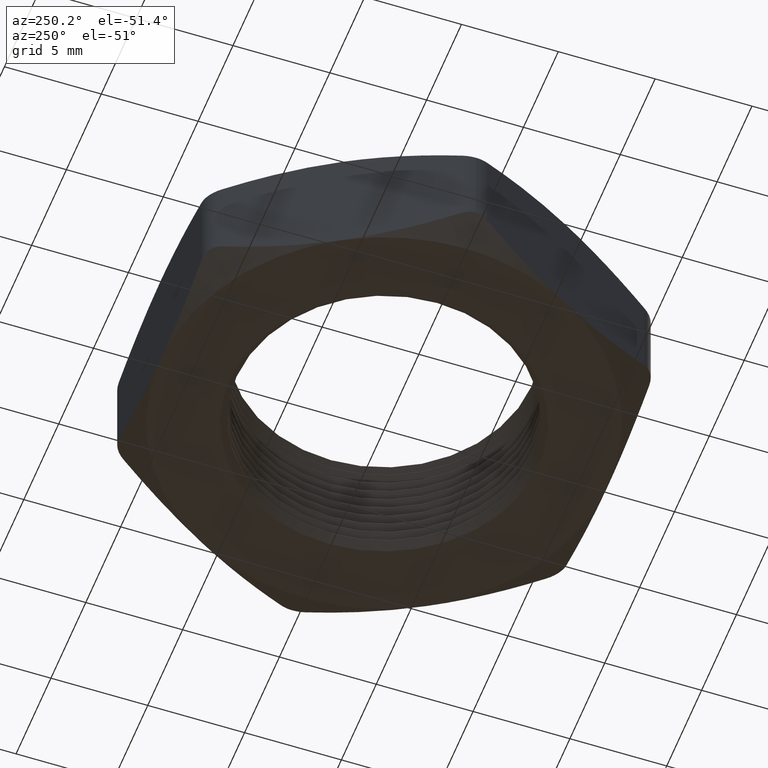
[diagram: clean part render]
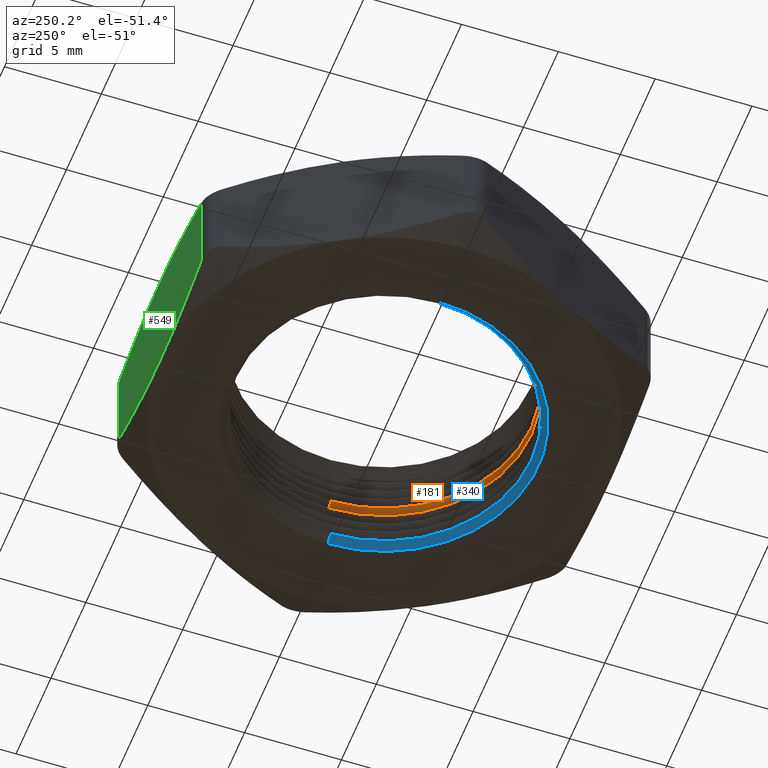
[diagram: same view with three faces highlighted in distinct colors, each labeled with its STEP entity id]
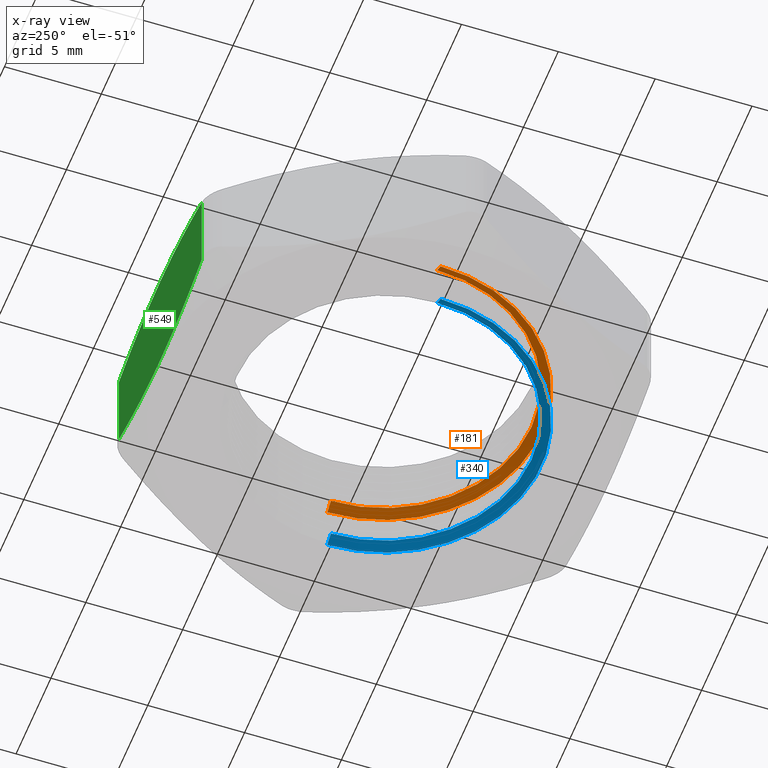
[diagram: x-ray of the same camera — body ghosted, the three highlighted faces saturated]
A machine part, auxiliary view with three faces highlighted in distinct colors.
The next image is the same camera in x-ray (body ghosted, the three faces saturated) — at least one of them is partly hidden behind the body in this view.
Their STEP definitions:

[orange] entity #181 — the highlighted conical surface has half-angle 60 deg.
#157 = VERTEX_POINT ( 'NONE', #1083 ) ;
#158 = EDGE_LOOP ( 'NONE', ( #161, #193, #300, #183 ) ) ;
#161 = ORIENTED_EDGE ( 'NONE', *, *, #192, .T. ) ;
#162 = VERTEX_POINT ( 'NONE', #1078 ) ;
#179 = EDGE_CURVE ( 'NONE', #182, #157, #1054, .T. ) ;
#181 = ADVANCED_FACE ( 'NONE', ( #1046 ), #1045, .F. ) ;
#182 = VERTEX_POINT ( 'NONE', #1040 ) ;
#183 = ORIENTED_EDGE ( 'NONE', *, *, #184, .F. ) ;
#184 = EDGE_CURVE ( 'NONE', #162, #188, #1038, .T. ) ;
#188 = VERTEX_POINT ( 'NONE', #1296 ) ;
#192 = EDGE_CURVE ( 'NONE', #162, #182, #1345, .T. ) ;
#193 = ORIENTED_EDGE ( 'NONE', *, *, #179, .T. ) ;
#294 = EDGE_CURVE ( 'NONE', #188, #157, #2396, .T. ) ;
#300 = ORIENTED_EDGE ( 'NONE', *, *, #294, .F. ) ;
#1037 = CARTESIAN_POINT ( 'NONE',  ( -0.3200000000000000100, 0.0000000000000000000, 0.1034529946162077400 ) ) ;
#1038 = LINE ( 'NONE', #1037, #1339 ) ;
#1040 = CARTESIAN_POINT ( 'NONE',  ( 0.2999999999999999900, 3.673940397442058300E-017, 0.1149999999999999900 ) ) ;
#1041 = DIRECTION ( 'NONE',  ( -1.000000000000000000, 0.0000000000000000000, 0.0000000000000000000 ) ) ;
#1042 = DIRECTION ( 'NONE',  ( 0.0000000000000000000, 0.0000000000000000000, -1.000000000000000000 ) ) ;
#1043 = CARTESIAN_POINT ( 'NONE',  ( 0.0000000000000000000, 0.0000000000000000000, 0.1034529946162077400 ) ) ;
#1044 = AXIS2_PLACEMENT_3D ( 'NONE', #1043, #1042, #1041 ) ;
#1045 = CONICAL_SURFACE ( 'NONE', #1044, 0.3200000000000000100, 1.047197551196608500 ) ;
#1046 = FACE_OUTER_BOUND ( 'NONE', #158, .T. ) ;
#1051 = DIRECTION ( 'NONE',  ( 0.8660254037844440400, 1.060575238724913400E-016, -0.4999999999999907300 ) ) ;
#1052 = VECTOR ( 'NONE', #1051, 39.37007874015748100 ) ;
#1053 = CARTESIAN_POINT ( 'NONE',  ( 0.3200000000000000100, 3.918869757271530800E-017, 0.1034529946162077400 ) ) ;
#1054 = LINE ( 'NONE', #1053, #1052 ) ;
#1078 = CARTESIAN_POINT ( 'NONE',  ( -0.2999999999999999900, 0.0000000000000000000, 0.1149999999999999900 ) ) ;
#1083 = CARTESIAN_POINT ( 'NONE',  ( 0.3200000000000000100, 3.918869757271530800E-017, 0.1034529946162077400 ) ) ;
#1296 = CARTESIAN_POINT ( 'NONE',  ( -0.3200000000000000100, 0.0000000000000000000, 0.1034529946162077400 ) ) ;
#1338 = DIRECTION ( 'NONE',  ( -0.8660254037844440400, 0.0000000000000000000, -0.4999999999999907300 ) ) ;
#1339 = VECTOR ( 'NONE', #1338, 39.37007874015748100 ) ;
#1340 = DIRECTION ( 'NONE',  ( 1.000000000000000000, 0.0000000000000000000, 0.0000000000000000000 ) ) ;
#1341 = DIRECTION ( 'NONE',  ( 0.0000000000000000000, 0.0000000000000000000, 1.000000000000000000 ) ) ;
#1342 = CARTESIAN_POINT ( 'NONE',  ( 0.0000000000000000000, 0.0000000000000000000, 0.1149999999999999900 ) ) ;
#1343 = AXIS2_PLACEMENT_3D ( 'NONE', #1342, #1341, #1340 ) ;
#1345 = CIRCLE ( 'NONE', #1343, 0.2999999999999999900 ) ;
#2377 = DIRECTION ( 'NONE',  ( 1.000000000000000000, 0.0000000000000000000, 0.0000000000000000000 ) ) ;
#2396 = CIRCLE ( 'NONE', #2417, 0.3200000000000000100 ) ;
#2417 = AXIS2_PLACEMENT_3D ( 'NONE', #2465, #2464, #2377 ) ;
#2464 = DIRECTION ( 'NONE',  ( 0.0000000000000000000, 0.0000000000000000000, 1.000000000000000000 ) ) ;
#2465 = CARTESIAN_POINT ( 'NONE',  ( 0.0000000000000000000, 0.0000000000000000000, 0.1034529946162077400 ) ) ;

[blue] entity #340 — the highlighted conical surface has half-angle 60 deg.
#43 = ORIENTED_EDGE ( 'NONE', *, *, #264, .T. ) ;
#249 = VERTEX_POINT ( 'NONE', #1306 ) ;
#261 = EDGE_LOOP ( 'NONE', ( #267, #43, #266, #317 ) ) ;
#262 = EDGE_CURVE ( 'NONE', #263, #265, #1367, .T. ) ;
#263 = VERTEX_POINT ( 'NONE', #1362 ) ;
#264 = EDGE_CURVE ( 'NONE', #249, #265, #1361, .T. ) ;
#265 = VERTEX_POINT ( 'NONE', #1357 ) ;
#266 = ORIENTED_EDGE ( 'NONE', *, *, #262, .F. ) ;
#267 = ORIENTED_EDGE ( 'NONE', *, *, #341, .T. ) ;
#268 = VERTEX_POINT ( 'NONE', #1356 ) ;
#317 = ORIENTED_EDGE ( 'NONE', *, *, #318, .F. ) ;
#318 = EDGE_CURVE ( 'NONE', #268, #263, #2391, .T. ) ;
#340 = ADVANCED_FACE ( 'NONE', ( #2367 ), #2366, .F. ) ;
#341 = EDGE_CURVE ( 'NONE', #268, #249, #2361, .T. ) ;
#1306 = CARTESIAN_POINT ( 'NONE',  ( 0.2999999999999999900, 3.673940397442058300E-017, 0.01499999999999997700 ) ) ;
#1356 = CARTESIAN_POINT ( 'NONE',  ( -0.2999999999999999900, 0.0000000000000000000, 0.01499999999999997700 ) ) ;
#1357 = CARTESIAN_POINT ( 'NONE',  ( 0.3200000000000000100, 0.0000000000000000000, 0.003452994616207730700 ) ) ;
#1358 = DIRECTION ( 'NONE',  ( 0.8660254037844440400, 1.060575238724913400E-016, -0.4999999999999907300 ) ) ;
#1359 = VECTOR ( 'NONE', #1358, 39.37007874015748100 ) ;
#1360 = CARTESIAN_POINT ( 'NONE',  ( 0.3200000000000000100, 3.918869757271530800E-017, 0.003452994616207730700 ) ) ;
#1361 = LINE ( 'NONE', #1360, #1359 ) ;
#1362 = CARTESIAN_POINT ( 'NONE',  ( -0.3200000000000000100, 3.918869757271529600E-017, 0.003452994616207730700 ) ) ;
#1363 = DIRECTION ( 'NONE',  ( 1.000000000000000000, 0.0000000000000000000, 0.0000000000000000000 ) ) ;
#1364 = DIRECTION ( 'NONE',  ( 0.0000000000000000000, 0.0000000000000000000, 1.000000000000000000 ) ) ;
#1365 = CARTESIAN_POINT ( 'NONE',  ( 0.0000000000000000000, 0.0000000000000000000, 0.003452994616207730700 ) ) ;
#1366 = AXIS2_PLACEMENT_3D ( 'NONE', #1365, #1364, #1363 ) ;
#1367 = CIRCLE ( 'NONE', #1366, 0.3200000000000000100 ) ;
#2333 = DIRECTION ( 'NONE',  ( -0.8660254037844440400, 0.0000000000000000000, -0.4999999999999907300 ) ) ;
#2334 = VECTOR ( 'NONE', #2333, 39.37007874015748100 ) ;
#2335 = CARTESIAN_POINT ( 'NONE',  ( -0.3200000000000000100, 0.0000000000000000000, 0.003452994616207730700 ) ) ;
#2358 = DIRECTION ( 'NONE',  ( 1.000000000000000000, 0.0000000000000000000, 0.0000000000000000000 ) ) ;
#2359 = DIRECTION ( 'NONE',  ( 0.0000000000000000000, 0.0000000000000000000, 1.000000000000000000 ) ) ;
#2360 = AXIS2_PLACEMENT_3D ( 'NONE', #2365, #2359, #2358 ) ;
#2361 = CIRCLE ( 'NONE', #2360, 0.2999999999999999900 ) ;
#2362 = DIRECTION ( 'NONE',  ( -1.000000000000000000, 0.0000000000000000000, 0.0000000000000000000 ) ) ;
#2363 = DIRECTION ( 'NONE',  ( 0.0000000000000000000, 0.0000000000000000000, -1.000000000000000000 ) ) ;
#2364 = AXIS2_PLACEMENT_3D ( 'NONE', #2373, #2363, #2362 ) ;
#2365 = CARTESIAN_POINT ( 'NONE',  ( 0.0000000000000000000, 0.0000000000000000000, 0.01499999999999997700 ) ) ;
#2366 = CONICAL_SURFACE ( 'NONE', #2364, 0.3200000000000000100, 1.047197551196608500 ) ;
#2367 = FACE_OUTER_BOUND ( 'NONE', #261, .T. ) ;
#2373 = CARTESIAN_POINT ( 'NONE',  ( 0.0000000000000000000, 0.0000000000000000000, 0.003452994616207730700 ) ) ;
#2391 = LINE ( 'NONE', #2335, #2334 ) ;

[green] entity #549 — the highlighted planar face has unit normal (0, -1, 0).
#354 = ORIENTED_EDGE ( 'NONE', *, *, #474, .F. ) ;
#411 = EDGE_CURVE ( 'NONE', #412, #515, #1616, .T. ) ;
#412 = VERTEX_POINT ( 'NONE', #1615 ) ;
#413 = ORIENTED_EDGE ( 'NONE', *, *, #414, .T. ) ;
#414 = EDGE_CURVE ( 'NONE', #412, #415, #1614, .T. ) ;
#415 = VERTEX_POINT ( 'NONE', #1602 ) ;
#474 = EDGE_CURVE ( 'NONE', #515, #569, #1698, .T. ) ;
#515 = VERTEX_POINT ( 'NONE', #1748 ) ;
#542 = ORIENTED_EDGE ( 'NONE', *, *, #543, .F. ) ;
#543 = EDGE_CURVE ( 'NONE', #544, #415, #1843, .T. ) ;
#544 = VERTEX_POINT ( 'NONE', #1731 ) ;
#545 = ORIENTED_EDGE ( 'NONE', *, *, #566, .F. ) ;
#546 = VERTEX_POINT ( 'NONE', #1844 ) ;
#549 = ADVANCED_FACE ( 'NONE', ( #1722 ), #1719, .F. ) ;
#550 = EDGE_LOOP ( 'NONE', ( #551, #413, #542, #545, #567, #354 ) ) ;
#551 = ORIENTED_EDGE ( 'NONE', *, *, #411, .F. ) ;
#566 = EDGE_CURVE ( 'NONE', #546, #544, #1983, .T. ) ;
#567 = ORIENTED_EDGE ( 'NONE', *, *, #568, .T. ) ;
#568 = EDGE_CURVE ( 'NONE', #546, #569, #1992, .T. ) ;
#569 = VERTEX_POINT ( 'NONE', #1907 ) ;
#1602 = CARTESIAN_POINT ( 'NONE',  ( -0.2338268590218038900, 0.4550000000000000700, 0.2073414762142313200 ) ) ;
#1603 = DIRECTION ( 'NONE',  ( 0.0000000000000000000, 0.0000000000000000000, 1.000000000000000000 ) ) ;
#1604 = VECTOR ( 'NONE', #1603, 39.37007874015748100 ) ;
#1605 = CARTESIAN_POINT ( 'NONE',  ( 0.0000000000000000000, 0.4550000000000000700, 0.0000000000000000000 ) ) ;
#1606 = CARTESIAN_POINT ( 'NONE',  ( -0.03945005728100808900, 0.4550000000000000700, 4.241834287037283000E-017 ) ) ;
#1607 = CARTESIAN_POINT ( 'NONE',  ( -0.07864598926684833500, 0.4550000000000000700, 0.003003698492828561300 ) ) ;
#1608 = CARTESIAN_POINT ( 'NONE',  ( -0.1371063905079151200, 0.4550000000000001300, 0.01145109565603983700 ) ) ;
#1609 = CARTESIAN_POINT ( 'NONE',  ( -0.1565382832308645800, 0.4550000000000000700, 0.01491589011174660100 ) ) ;
#1610 = CARTESIAN_POINT ( 'NONE',  ( -0.1953054508661748200, 0.4550000000000000700, 0.02298747778347453800 ) ) ;
#1611 = CARTESIAN_POINT ( 'NONE',  ( -0.2146741691584044500, 0.4550000000000000200, 0.02760421601904862500 ) ) ;
#1612 = CARTESIAN_POINT ( 'NONE',  ( -0.2338268590218038900, 0.4550000000000000700, 0.03265852378576869500 ) ) ;
#1613 = CARTESIAN_POINT ( 'NONE',  ( -0.2338268590217983900, 0.4550000000000000700, 0.2399999999999999900 ) ) ;
#1614 = LINE ( 'NONE', #1613, #1604 ) ;
#1615 = CARTESIAN_POINT ( 'NONE',  ( -0.2338268590218038900, 0.4550000000000000700, 0.03265852378576869500 ) ) ;
#1616 = B_SPLINE_CURVE_WITH_KNOTS ( 'NONE', 3,
 ( #1612, #1611, #1610, #1609, #1608, #1607, #1606, #1605 ),
 .UNSPECIFIED., .F., .F.,
 ( 4, 2, 2, 4 ),
 ( 0.01297327125695932500, 0.01447242820131362800, 0.01597158514566793300, 0.01896989903437654200 ),
 .UNSPECIFIED. ) ;
#1631 = CARTESIAN_POINT ( 'NONE',  ( 0.0000000000000000000, 0.4550000000000000700, 0.0000000000000000000 ) ) ;
#1698 = B_SPLINE_CURVE_WITH_KNOTS ( 'NONE', 3,
 ( #1631, #1735, #1734, #1733, #1732, #1835, #1834, #1833 ),
 .UNSPECIFIED., .F., .F.,
 ( 4, 2, 2, 4 ),
 ( 0.01896989903437654200, 0.02046862694841708100, 0.02196735486245762400, 0.02496481069053870700 ),
 .UNSPECIFIED. ) ;
#1708 = DIRECTION ( 'NONE',  ( 0.0000000000000000000, 0.0000000000000000000, -1.000000000000000000 ) ) ;
#1709 = DIRECTION ( 'NONE',  ( 0.0000000000000000000, -1.000000000000000000, 0.0000000000000000000 ) ) ;
#1718 = CARTESIAN_POINT ( 'NONE',  ( 0.2626943724812798000, 0.4550000000000000700, 0.2399999999999999900 ) ) ;
#1719 = PLANE ( 'NONE',  #1721 ) ;
#1721 = AXIS2_PLACEMENT_3D ( 'NONE', #1718, #1709, #1708 ) ;
#1722 = FACE_OUTER_BOUND ( 'NONE', #550, .T. ) ;
#1723 = CARTESIAN_POINT ( 'NONE',  ( -0.2338268590218038900, 0.4550000000000000700, 0.2073414762142313200 ) ) ;
#1724 = CARTESIAN_POINT ( 'NONE',  ( -0.2146741691584045900, 0.4550000000000001300, 0.2123957839809513800 ) ) ;
#1725 = CARTESIAN_POINT ( 'NONE',  ( -0.1953054508661749300, 0.4550000000000001300, 0.2170125222165254800 ) ) ;
#1726 = CARTESIAN_POINT ( 'NONE',  ( -0.1565382832308647200, 0.4550000000000001300, 0.2250841098882533900 ) ) ;
#1727 = CARTESIAN_POINT ( 'NONE',  ( -0.1371063905079152300, 0.4550000000000000700, 0.2285489043439601400 ) ) ;
#1728 = CARTESIAN_POINT ( 'NONE',  ( -0.07864598926684833500, 0.4550000000000000700, 0.2369963015071713800 ) ) ;
#1729 = CARTESIAN_POINT ( 'NONE',  ( -0.03945005728100812300, 0.4549999999999999000, 0.2399999999999999900 ) ) ;
#1730 = CARTESIAN_POINT ( 'NONE',  ( 0.0000000000000000000, 0.4550000000000000700, 0.2399999999999999900 ) ) ;
#1731 = CARTESIAN_POINT ( 'NONE',  ( 0.0000000000000000000, 0.4550000000000000700, 0.2399999999999999900 ) ) ;
#1732 = CARTESIAN_POINT ( 'NONE',  ( 0.09892662905982894900, 0.4550000000000000700, 0.005915794035617035600 ) ) ;
#1733 = CARTESIAN_POINT ( 'NONE',  ( 0.07919115913705908300, 0.4550000000000000200, 0.003706962014291357000 ) ) ;
#1734 = CARTESIAN_POINT ( 'NONE',  ( 0.03950165002534822300, 0.4550000000000000700, 0.0007432569064734319900 ) ) ;
#1735 = CARTESIAN_POINT ( 'NONE',  ( 0.01971938371102643200, 0.4550000000000001800, 3.806090303672862800E-017 ) ) ;
#1748 = CARTESIAN_POINT ( 'NONE',  ( 0.0000000000000000000, 0.4550000000000000700, 0.0000000000000000000 ) ) ;
#1833 = CARTESIAN_POINT ( 'NONE',  ( 0.2338268590217984500, 0.4550000000000000700, 0.03265852378576768200 ) ) ;
#1834 = CARTESIAN_POINT ( 'NONE',  ( 0.1959085919042606900, 0.4550000000000001300, 0.02265206550969153800 ) ) ;
#1835 = CARTESIAN_POINT ( 'NONE',  ( 0.1575169372416703200, 0.4550000000000000700, 0.01443840703319315500 ) ) ;
#1843 = B_SPLINE_CURVE_WITH_KNOTS ( 'NONE', 3,
 ( #1730, #1729, #1728, #1727, #1726, #1725, #1724, #1723 ),
 .UNSPECIFIED., .F., .F.,
 ( 4, 2, 2, 4 ),
 ( 0.04075510468871172700, 0.04375383650408408400, 0.04525320241177026300, 0.04675256831945644200 ),
 .UNSPECIFIED. ) ;
#1844 = CARTESIAN_POINT ( 'NONE',  ( 0.2338268590217256200, 0.4550000000000000700, 0.2073414762142515600 ) ) ;
#1907 = CARTESIAN_POINT ( 'NONE',  ( 0.2338268590217984500, 0.4550000000000000700, 0.03265852378576768200 ) ) ;
#1908 = VECTOR ( 'NONE', #1981, 39.37007874015748100 ) ;
#1909 = CARTESIAN_POINT ( 'NONE',  ( 0.0000000000000000000, 0.4550000000000000700, 0.2399999999999999900 ) ) ;
#1910 = CARTESIAN_POINT ( 'NONE',  ( 0.01971938371102012500, 0.4550000000000001300, 0.2399999999999999600 ) ) ;
#1911 = CARTESIAN_POINT ( 'NONE',  ( 0.03950165002533546900, 0.4550000000000001300, 0.2392567430935270700 ) ) ;
#1912 = CARTESIAN_POINT ( 'NONE',  ( 0.07919115913703354800, 0.4550000000000001300, 0.2362930379857110200 ) ) ;
#1913 = CARTESIAN_POINT ( 'NONE',  ( 0.09892662905979732200, 0.4550000000000000700, 0.2340842059643866700 ) ) ;
#1914 = CARTESIAN_POINT ( 'NONE',  ( 0.1575169372416205800, 0.4550000000000000200, 0.2255615929668157700 ) ) ;
#1915 = CARTESIAN_POINT ( 'NONE',  ( 0.1959085919041993200, 0.4550000000000001800, 0.2173479344903221600 ) ) ;
#1980 = CARTESIAN_POINT ( 'NONE',  ( 0.2338268590217256200, 0.4550000000000000700, 0.2073414762142515600 ) ) ;
#1981 = DIRECTION ( 'NONE',  ( 0.0000000000000000000, 0.0000000000000000000, -1.000000000000000000 ) ) ;
#1982 = CARTESIAN_POINT ( 'NONE',  ( 0.2338268590217984800, 0.4550000000000000700, 0.2399999999999999900 ) ) ;
#1983 = B_SPLINE_CURVE_WITH_KNOTS ( 'NONE', 3,
 ( #1980, #1915, #1914, #1913, #1912, #1911, #1910, #1909 ),
 .UNSPECIFIED., .F., .F.,
 ( 4, 2, 2, 4 ),
 ( 0.03475935741842937200, 0.03775723105357054600, 0.03925616787114114000, 0.04075510468871172700 ),
 .UNSPECIFIED. ) ;
#1992 = LINE ( 'NONE', #1982, #1908 ) ;